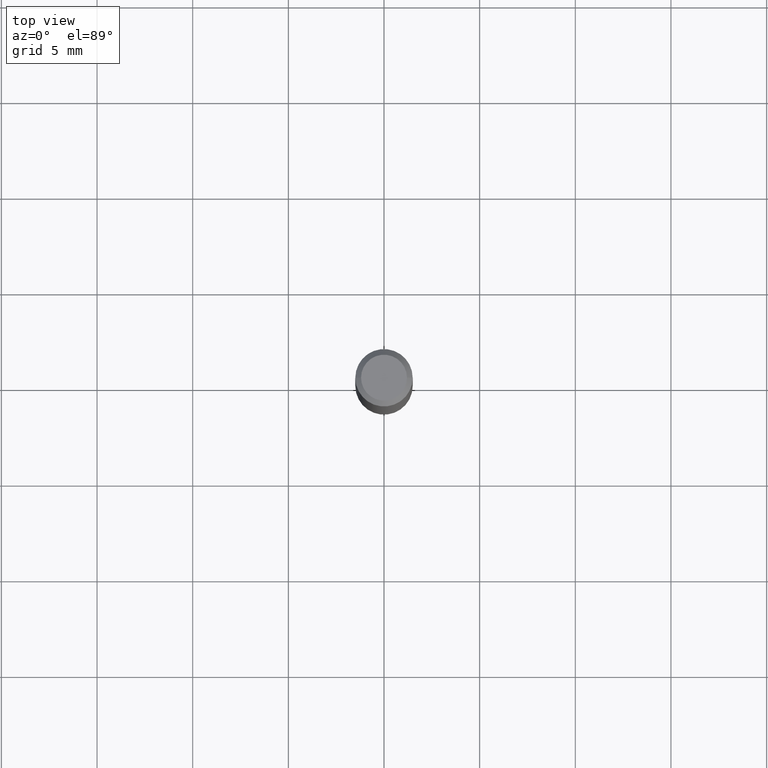
[diagram: clean part render]
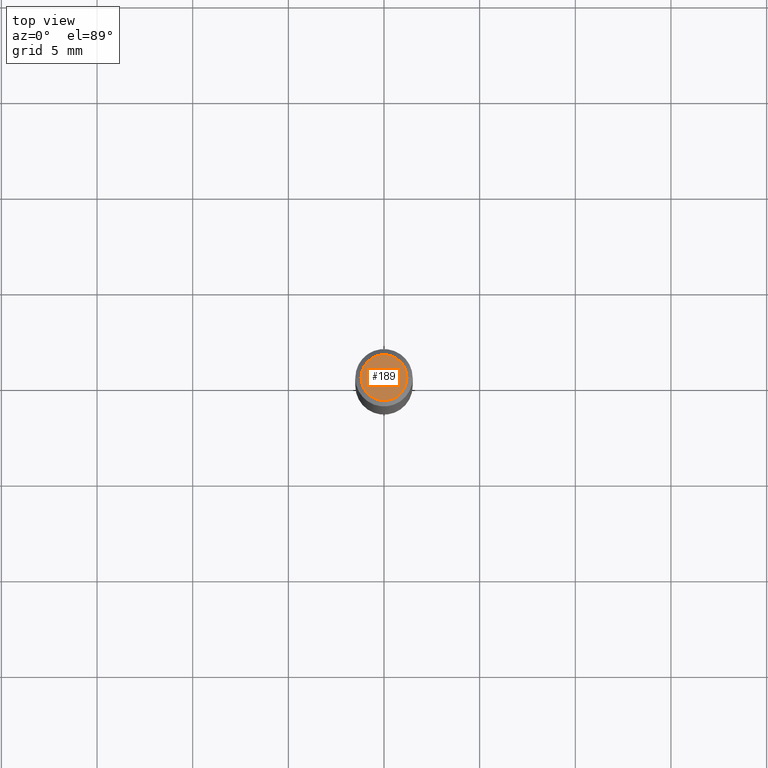
[diagram: same view with one face highlighted and labeled with its STEP entity id]
A machine part, top view. The second image highlights one B-rep face of the part: STEP entity #189.
In plain terms, the highlighted planar face has unit normal (0, -0, -1).
Its self-contained STEP definition (entity closure, byte-faithful):
#1 = DIRECTION ( 'NONE',  ( 2.438088387897960049E-29, -3.491481338843145188E-15, -1.000000000000000000 ) ) ;
#11 = EDGE_LOOP ( 'NONE', ( #267, #309 ) ) ;
#31 = CARTESIAN_POINT ( 'NONE',  ( 0.04724000000000000421, -3.852183633974369345E-16, -3.380025165621689721E-19 ) ) ;
#33 = EDGE_CURVE ( 'NONE', #469, #305, #334, .T. ) ;
#47 = CARTESIAN_POINT ( 'NONE',  ( 8.265746106709734507E-48, -1.180129479067563789E-33, -3.380025165646692144E-19 ) ) ;
#72 = CARTESIAN_POINT ( 'NONE',  ( 4.132873053354867254E-48, -5.900647395337818946E-34, -1.690012582823346072E-19 ) ) ;
#83 = AXIS2_PLACEMENT_3D ( 'NONE', #47, #162, #471 ) ;
#119 = CIRCLE ( 'NONE', #126, 0.04724000000000000421 ) ;
#126 = AXIS2_PLACEMENT_3D ( 'NONE', #243, #276, #430 ) ;
#132 = EDGE_CURVE ( 'NONE', #305, #469, #119, .T. ) ;
#146 = FACE_OUTER_BOUND ( 'NONE', #11, .T. ) ;
#162 = DIRECTION ( 'NONE',  ( -2.445468806185136597E-29, 3.491481338843145583E-15, 1.000000000000000000 ) ) ;
#189 = ADVANCED_FACE ( 'NONE', ( #146 ), #403, .F. ) ;
#243 = CARTESIAN_POINT ( 'NONE',  ( 8.265746106709734507E-48, -1.180129479067563789E-33, -3.380025165646692144E-19 ) ) ;
#244 = AXIS2_PLACEMENT_3D ( 'NONE', #72, #1, #291 ) ;
#267 = ORIENTED_EDGE ( 'NONE', *, *, #33, .T. ) ;
#276 = DIRECTION ( 'NONE',  ( -2.445468806185136597E-29, 3.491481338843145583E-15, 1.000000000000000000 ) ) ;
#291 = DIRECTION ( 'NONE',  ( -1.000000000000000000, 6.982962677686265922E-15, -4.876176775795935793E-29 ) ) ;
#305 = VERTEX_POINT ( 'NONE', #31 ) ;
#309 = ORIENTED_EDGE ( 'NONE', *, *, #132, .T. ) ;
#334 = CIRCLE ( 'NONE', #83, 0.04724000000000000421 ) ;
#337 = CARTESIAN_POINT ( 'NONE',  ( -0.04724000000000000421, 3.504923541997677355E-16, -3.380025165670481712E-19 ) ) ;
#403 = PLANE ( 'NONE',  #244 ) ;
#430 = DIRECTION ( 'NONE',  ( 1.000000000000000000, -6.982962677686266711E-15, 4.876185090822587894E-29 ) ) ;
#469 = VERTEX_POINT ( 'NONE', #337 ) ;
#471 = DIRECTION ( 'NONE',  ( 1.000000000000000000, -6.982962677686266711E-15, 4.876185090822587894E-29 ) ) ;